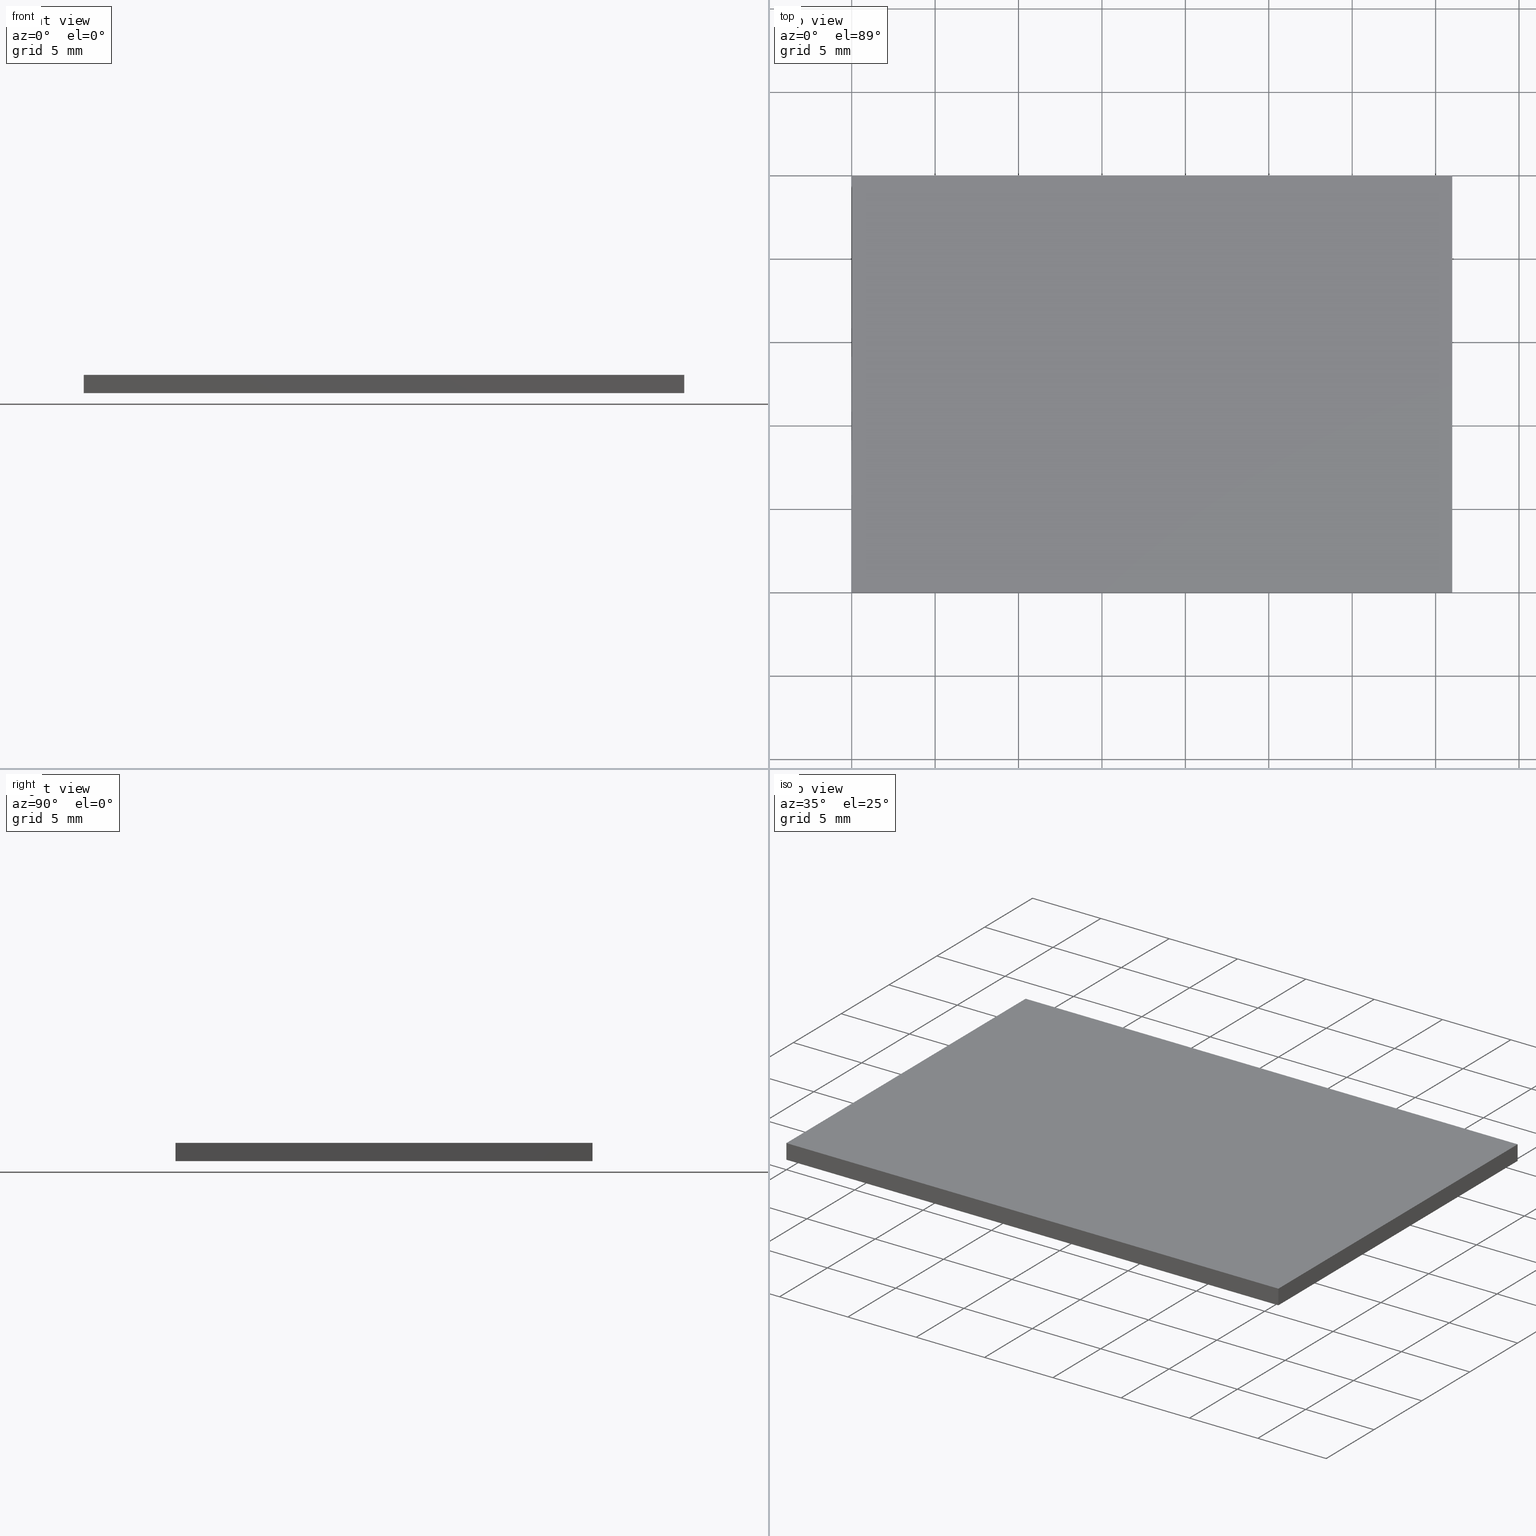
[diagram: canonical four-view strip — front | top / right | iso, engineering-drawing reading convention]
A machine part, canonical four-view strip (front | top / right | iso — engineering-drawing reading convention). The complete STEP part file that produces these views, byte-faithful:
ISO-10303-21;
HEADER;
FILE_DESCRIPTION (( 'STEP AP214' ),
    '1' );
FILE_NAME ('GDMLPH-510-25x36S.STEP',
    '2024-08-13T06:03:54',
    ( 'Windows User' ),
    ( 'P R C' ),
    'SwSTEP 2.0',
    'SolidWorks 2022',
    '' );
FILE_SCHEMA (( 'AUTOMOTIVE_DESIGN' ));
ENDSEC;

DATA;
#1 = CARTESIAN_POINT ( 'NONE',  ( 0.000000000000000000, 0.000000000000000000, 0.000000000000000000 ) ) ;
#2 = FACE_OUTER_BOUND ( 'NONE', #170, .T. ) ;
#3 = VECTOR ( 'NONE', #10, 1000.000000000000000 ) ;
#4 = ORIENTED_EDGE ( 'NONE', *, *, #95, .F. ) ;
#5 = DIRECTION ( 'NONE',  ( -0.000000000000000000, -0.000000000000000000, -1.000000000000000000 ) ) ;
#6 = CARTESIAN_POINT ( 'NONE',  ( 36.00000000000000000, 0.000000000000000000, 1.100000000000000089 ) ) ;
#7 = ORIENTED_EDGE ( 'NONE', *, *, #134, .F. ) ;
#8 = VECTOR ( 'NONE', #13, 1000.000000000000000 ) ;
#9 = UNCERTAINTY_MEASURE_WITH_UNIT (LENGTH_MEASURE( 1.000000000000000082E-05 ), #193, 'distance_accuracy_value', 'NONE');
#10 = DIRECTION ( 'NONE',  ( -0.000000000000000000, -0.000000000000000000, -1.000000000000000000 ) ) ;
#11 = FACE_OUTER_BOUND ( 'NONE', #160, .T. ) ;
#12 = PRESENTATION_STYLE_ASSIGNMENT (( #77 ) ) ;
#13 = DIRECTION ( 'NONE',  ( -0.000000000000000000, -0.000000000000000000, -1.000000000000000000 ) ) ;
#14 = EDGE_LOOP ( 'NONE', ( #147, #112, #82, #190 ) ) ;
#15 = CARTESIAN_POINT ( 'NONE',  ( 0.000000000000000000, 0.000000000000000000, 1.100000000000000089 ) ) ;
#16 = ORIENTED_EDGE ( 'NONE', *, *, #89, .F. ) ;
#17 = LINE ( 'NONE', #149, #173 ) ;
#18 = EDGE_CURVE ( 'NONE', #85, #150, #17, .T. ) ;
#19 = ORIENTED_EDGE ( 'NONE', *, *, #183, .T. ) ;
#20 = SHAPE_DEFINITION_REPRESENTATION ( #129, #142 ) ;
#21 = PRODUCT_CONTEXT ( 'NONE', #46, 'mechanical' ) ;
#22 = EDGE_CURVE ( 'NONE', #113, #47, #128, .T. ) ;
#23 = UNCERTAINTY_MEASURE_WITH_UNIT (LENGTH_MEASURE( 1.000000000000000082E-05 ), #78, 'distance_accuracy_value', 'NONE');
#24 = PLANE ( 'NONE',  #132 ) ;
#25 = SURFACE_SIDE_STYLE ('',( #164 ) ) ;
#26 = VECTOR ( 'NONE', #141, 1000.000000000000000 ) ;
#27 =( GEOMETRIC_REPRESENTATION_CONTEXT ( 3 ) GLOBAL_UNCERTAINTY_ASSIGNED_CONTEXT ( ( #9 ) ) GLOBAL_UNIT_ASSIGNED_CONTEXT ( ( #193, #101, #195 ) ) REPRESENTATION_CONTEXT ( 'NONE', 'WORKASPACE' ) );
#28 = DIRECTION ( 'NONE',  ( -0.000000000000000000, -0.000000000000000000, -1.000000000000000000 ) ) ;
#29 = LINE ( 'NONE', #94, #96 ) ;
#30 =( NAMED_UNIT ( * ) PLANE_ANGLE_UNIT ( ) SI_UNIT ( $, .RADIAN. ) );
#31 = EDGE_CURVE ( 'NONE', #48, #47, #97, .T. ) ;
#32 = CLOSED_SHELL ( 'NONE', ( #131, #79, #191, #167, #60, #188 ) ) ;
#33 = ORIENTED_EDGE ( 'NONE', *, *, #31, .F. ) ;
#34 = ORIENTED_EDGE ( 'NONE', *, *, #31, .T. ) ;
#35 = VERTEX_POINT ( 'NONE', #130 ) ;
#36 = SURFACE_SIDE_STYLE ('',( #175 ) ) ;
#37 = DIRECTION ( 'NONE',  ( 0.000000000000000000, -1.000000000000000000, 0.000000000000000000 ) ) ;
#38 = FACE_OUTER_BOUND ( 'NONE', #14, .T. ) ;
#39 = CARTESIAN_POINT ( 'NONE',  ( 0.000000000000000000, 0.000000000000000000, 1.100000000000000089 ) ) ;
#40 = FILL_AREA_STYLE_COLOUR ( '', #182 ) ;
#41 = PRODUCT_RELATED_PRODUCT_CATEGORY ( 'part', '', ( #99 ) ) ;
#42 = VECTOR ( 'NONE', #178, 1000.000000000000000 ) ;
#43 = DIRECTION ( 'NONE',  ( 0.000000000000000000, 0.000000000000000000, 1.000000000000000000 ) ) ;
#44 =( NAMED_UNIT ( * ) PLANE_ANGLE_UNIT ( ) SI_UNIT ( $, .RADIAN. ) );
#45 = CARTESIAN_POINT ( 'NONE',  ( 0.000000000000000000, 0.000000000000000000, 1.100000000000000089 ) ) ;
#46 = APPLICATION_CONTEXT ( 'automotive_design' ) ;
#47 = VERTEX_POINT ( 'NONE', #157 ) ;
#48 = VERTEX_POINT ( 'NONE', #100 ) ;
#49 = EDGE_LOOP ( 'NONE', ( #127, #98, #171, #174 ) ) ;
#50 = ORIENTED_EDGE ( 'NONE', *, *, #68, .F. ) ;
#51 = VECTOR ( 'NONE', #67, 1000.000000000000000 ) ;
#52 = SURFACE_STYLE_USAGE ( .BOTH. , #25 ) ;
#53 = PRODUCT_DEFINITION_CONTEXT ( 'detailed design', #54, 'design' ) ;
#54 = APPLICATION_CONTEXT ( 'automotive_design' ) ;
#55 = DIRECTION ( 'NONE',  ( 0.000000000000000000, -0.000000000000000000, -1.000000000000000000 ) ) ;
#56 = EDGE_CURVE ( 'NONE', #115, #48, #192, .T. ) ;
#57 = CARTESIAN_POINT ( 'NONE',  ( 36.00000000000000000, 25.00000000000000000, 0.000000000000000000 ) ) ;
#58 = LINE ( 'NONE', #121, #64 ) ;
#59 = AXIS2_PLACEMENT_3D ( 'NONE', #139, #109, #75 ) ;
#60 = ADVANCED_FACE ( 'NONE', ( #201 ), #108, .F. ) ;
#61 = DIRECTION ( 'NONE',  ( 0.000000000000000000, -0.000000000000000000, 1.000000000000000000 ) ) ;
#62 = CARTESIAN_POINT ( 'NONE',  ( 0.000000000000000000, 25.00000000000000000, 0.000000000000000000 ) ) ;
#63 = PLANE ( 'NONE',  #73 ) ;
#64 = VECTOR ( 'NONE', #106, 1000.000000000000000 ) ;
#65 = ORIENTED_EDGE ( 'NONE', *, *, #18, .T. ) ;
#66 = ORIENTED_EDGE ( 'NONE', *, *, #161, .F. ) ;
#67 = DIRECTION ( 'NONE',  ( 1.000000000000000000, 0.000000000000000000, 0.000000000000000000 ) ) ;
#68 = EDGE_CURVE ( 'NONE', #35, #48, #92, .T. ) ;
#69 = MECHANICAL_DESIGN_GEOMETRIC_PRESENTATION_REPRESENTATION (  '', ( #122 ), #138 ) ;
#70 = UNCERTAINTY_MEASURE_WITH_UNIT (LENGTH_MEASURE( 1.000000000000000082E-05 ), #166, 'distance_accuracy_value', 'NONE');
#71 = EDGE_CURVE ( 'NONE', #116, #115, #58, .T. ) ;
#72 = DIRECTION ( 'NONE',  ( -1.000000000000000000, 0.000000000000000000, 0.000000000000000000 ) ) ;
#73 = AXIS2_PLACEMENT_3D ( 'NONE', #202, #72, #43 ) ;
#74 = PRESENTATION_STYLE_ASSIGNMENT (( #52 ) ) ;
#75 = DIRECTION ( 'NONE',  ( -1.000000000000000000, 0.000000000000000000, -0.000000000000000000 ) ) ;
#76 = DIRECTION ( 'NONE',  ( 0.000000000000000000, 1.000000000000000000, 0.000000000000000000 ) ) ;
#77 = SURFACE_STYLE_USAGE ( .BOTH. , #36 ) ;
#78 =( LENGTH_UNIT ( ) NAMED_UNIT ( * ) SI_UNIT ( .MILLI., .METRE. ) );
#79 = ADVANCED_FACE ( 'NONE', ( #11 ), #24, .F. ) ;
#80 = AXIS2_PLACEMENT_3D ( 'NONE', #105, #196, #163 ) ;
#81 = EDGE_LOOP ( 'NONE', ( #103, #159, #7, #172 ) ) ;
#82 = ORIENTED_EDGE ( 'NONE', *, *, #71, .F. ) ;
#83 = EDGE_LOOP ( 'NONE', ( #19, #16, #148, #65 ) ) ;
#84 = COLOUR_RGB ( '',1.000000000000000000, 1.000000000000000000, 1.000000000000000000 ) ;
#85 = VERTEX_POINT ( 'NONE', #143 ) ;
#86 = ORIENTED_EDGE ( 'NONE', *, *, #56, .T. ) ;
#87 = PLANE ( 'NONE',  #80 ) ;
#88 = DIRECTION ( 'NONE',  ( 0.000000000000000000, 1.000000000000000000, 0.000000000000000000 ) ) ;
#89 = EDGE_CURVE ( 'NONE', #116, #35, #123, .T. ) ;
#90 = CARTESIAN_POINT ( 'NONE',  ( 0.000000000000000000, 25.00000000000000000, 1.100000000000000089 ) ) ;
#91 = VECTOR ( 'NONE', #199, 1000.000000000000000 ) ;
#92 = LINE ( 'NONE', #184, #26 ) ;
#93 = MECHANICAL_DESIGN_GEOMETRIC_PRESENTATION_REPRESENTATION (  '', ( #102 ), #27 ) ;
#94 = CARTESIAN_POINT ( 'NONE',  ( 0.000000000000000000, 0.000000000000000000, 1.100000000000000089 ) ) ;
#95 = EDGE_CURVE ( 'NONE', #115, #113, #29, .T. ) ;
#96 = VECTOR ( 'NONE', #154, 1000.000000000000000 ) ;
#97 = LINE ( 'NONE', #146, #51 ) ;
#98 = ORIENTED_EDGE ( 'NONE', *, *, #95, .T. ) ;
#99 = PRODUCT ( 'GDMLPH-510-25x36S', 'GDMLPH-510-25x36S', '', ( #21 ) ) ;
#100 = CARTESIAN_POINT ( 'NONE',  ( 0.000000000000000000, 0.000000000000000000, 0.000000000000000000 ) ) ;
#101 =( NAMED_UNIT ( * ) PLANE_ANGLE_UNIT ( ) SI_UNIT ( $, .RADIAN. ) );
#102 = STYLED_ITEM ( 'NONE', ( #12 ), #142 ) ;
#103 = ORIENTED_EDGE ( 'NONE', *, *, #161, .T. ) ;
#104 = APPLICATION_PROTOCOL_DEFINITION ( 'draft international standard', 'automotive_design', 1998, #46 ) ;
#105 = CARTESIAN_POINT ( 'NONE',  ( 0.000000000000000000, 0.000000000000000000, 1.100000000000000089 ) ) ;
#106 = DIRECTION ( 'NONE',  ( -0.000000000000000000, -1.000000000000000000, -0.000000000000000000 ) ) ;
#107 = CARTESIAN_POINT ( 'NONE',  ( 36.00000000000000000, 0.000000000000000000, 1.100000000000000089 ) ) ;
#108 = PLANE ( 'NONE',  #59 ) ;
#109 = DIRECTION ( 'NONE',  ( 0.000000000000000000, 0.000000000000000000, -1.000000000000000000 ) ) ;
#110 = LINE ( 'NONE', #119, #42 ) ;
#111 = PRODUCT_DEFINITION_FORMATION_WITH_SPECIFIED_SOURCE ( '�κ�', '', #99, .NOT_KNOWN. ) ;
#112 = ORIENTED_EDGE ( 'NONE', *, *, #56, .F. ) ;
#113 = VERTEX_POINT ( 'NONE', #186 ) ;
#114 = EDGE_CURVE ( 'NONE', #85, #116, #110, .T. ) ;
#115 = VERTEX_POINT ( 'NONE', #39 ) ;
#116 = VERTEX_POINT ( 'NONE', #90 ) ;
#117 = AXIS2_PLACEMENT_3D ( 'NONE', #1, #137, #185 ) ;
#118 = APPLICATION_PROTOCOL_DEFINITION ( 'draft international standard', 'automotive_design', 1998, #54 ) ;
#119 = CARTESIAN_POINT ( 'NONE',  ( 0.000000000000000000, 25.00000000000000000, 1.100000000000000089 ) ) ;
#120 = PLANE ( 'NONE',  #156 ) ;
#121 = CARTESIAN_POINT ( 'NONE',  ( 0.000000000000000000, 0.000000000000000000, 1.100000000000000089 ) ) ;
#122 = STYLED_ITEM ( 'NONE', ( #74 ), #169 ) ;
#123 = LINE ( 'NONE', #181, #165 ) ;
#124 = DIRECTION ( 'NONE',  ( -1.000000000000000000, -0.000000000000000000, -0.000000000000000000 ) ) ;
#125 = PLANE ( 'NONE',  #117 ) ;
#126 = VECTOR ( 'NONE', #124, 1000.000000000000000 ) ;
#127 = ORIENTED_EDGE ( 'NONE', *, *, #71, .T. ) ;
#128 = LINE ( 'NONE', #6, #8 ) ;
#129 = PRODUCT_DEFINITION_SHAPE ( 'NONE', 'NONE',  #153 ) ;
#130 = CARTESIAN_POINT ( 'NONE',  ( 0.000000000000000000, 25.00000000000000000, 0.000000000000000000 ) ) ;
#131 = ADVANCED_FACE ( 'NONE', ( #38 ), #87, .F. ) ;
#132 = AXIS2_PLACEMENT_3D ( 'NONE', #45, #76, #61 ) ;
#133 = FILL_AREA_STYLE ('',( #189 ) ) ;
#134 = EDGE_CURVE ( 'NONE', #113, #85, #136, .T. ) ;
#135 = LINE ( 'NONE', #151, #91 ) ;
#136 = LINE ( 'NONE', #107, #152 ) ;
#137 = DIRECTION ( 'NONE',  ( 0.000000000000000000, 0.000000000000000000, -1.000000000000000000 ) ) ;
#138 =( GEOMETRIC_REPRESENTATION_CONTEXT ( 3 ) GLOBAL_UNCERTAINTY_ASSIGNED_CONTEXT ( ( #23 ) ) GLOBAL_UNIT_ASSIGNED_CONTEXT ( ( #78, #30, #155 ) ) REPRESENTATION_CONTEXT ( 'NONE', 'WORKASPACE' ) );
#139 = CARTESIAN_POINT ( 'NONE',  ( 0.000000000000000000, 0.000000000000000000, 1.100000000000000089 ) ) ;
#140 = FACE_OUTER_BOUND ( 'NONE', #83, .T. ) ;
#141 = DIRECTION ( 'NONE',  ( -0.000000000000000000, -1.000000000000000000, -0.000000000000000000 ) ) ;
#142 = ADVANCED_BREP_SHAPE_REPRESENTATION ( 'GDMLPH-510-25x36S', ( #169, #145 ), #200 ) ;
#143 = CARTESIAN_POINT ( 'NONE',  ( 36.00000000000000000, 25.00000000000000000, 1.100000000000000089 ) ) ;
#144 = LINE ( 'NONE', #62, #126 ) ;
#145 = AXIS2_PLACEMENT_3D ( 'NONE', #162, #177, #198 ) ;
#146 = CARTESIAN_POINT ( 'NONE',  ( 0.000000000000000000, 0.000000000000000000, 0.000000000000000000 ) ) ;
#147 = ORIENTED_EDGE ( 'NONE', *, *, #68, .T. ) ;
#148 = ORIENTED_EDGE ( 'NONE', *, *, #114, .F. ) ;
#149 = CARTESIAN_POINT ( 'NONE',  ( 36.00000000000000000, 25.00000000000000000, 1.100000000000000089 ) ) ;
#150 = VERTEX_POINT ( 'NONE', #57 ) ;
#151 = CARTESIAN_POINT ( 'NONE',  ( 36.00000000000000000, 0.000000000000000000, 0.000000000000000000 ) ) ;
#152 = VECTOR ( 'NONE', #88, 1000.000000000000000 ) ;
#153 = PRODUCT_DEFINITION ( 'δ֪', '', #111, #53 ) ;
#154 = DIRECTION ( 'NONE',  ( 1.000000000000000000, 0.000000000000000000, 0.000000000000000000 ) ) ;
#155 =( NAMED_UNIT ( * ) SI_UNIT ( $, .STERADIAN. ) SOLID_ANGLE_UNIT ( ) );
#156 = AXIS2_PLACEMENT_3D ( 'NONE', #197, #37, #55 ) ;
#157 = CARTESIAN_POINT ( 'NONE',  ( 36.00000000000000000, 0.000000000000000000, 0.000000000000000000 ) ) ;
#158 = ORIENTED_EDGE ( 'NONE', *, *, #22, .F. ) ;
#159 = ORIENTED_EDGE ( 'NONE', *, *, #18, .F. ) ;
#160 = EDGE_LOOP ( 'NONE', ( #34, #158, #4, #86 ) ) ;
#161 = EDGE_CURVE ( 'NONE', #47, #150, #135, .T. ) ;
#162 = CARTESIAN_POINT ( 'NONE',  ( 0.000000000000000000, 0.000000000000000000, 0.000000000000000000 ) ) ;
#163 = DIRECTION ( 'NONE',  ( 0.000000000000000000, 0.000000000000000000, -1.000000000000000000 ) ) ;
#164 = SURFACE_STYLE_FILL_AREA ( #180 ) ;
#165 = VECTOR ( 'NONE', #28, 1000.000000000000000 ) ;
#166 =( LENGTH_UNIT ( ) NAMED_UNIT ( * ) SI_UNIT ( .MILLI., .METRE. ) );
#167 = ADVANCED_FACE ( 'NONE', ( #140 ), #120, .F. ) ;
#168 = PRESENTATION_LAYER_ASSIGNMENT (  '', '', ( #102 ) ) ;
#169 = MANIFOLD_SOLID_BREP ( '͹̨-����1', #32 ) ;
#170 = EDGE_LOOP ( 'NONE', ( #50, #176, #66, #33 ) ) ;
#171 = ORIENTED_EDGE ( 'NONE', *, *, #134, .T. ) ;
#172 = ORIENTED_EDGE ( 'NONE', *, *, #22, .T. ) ;
#173 = VECTOR ( 'NONE', #5, 1000.000000000000000 ) ;
#174 = ORIENTED_EDGE ( 'NONE', *, *, #114, .T. ) ;
#175 = SURFACE_STYLE_FILL_AREA ( #133 ) ;
#176 = ORIENTED_EDGE ( 'NONE', *, *, #183, .F. ) ;
#177 = DIRECTION ( 'NONE',  ( 0.000000000000000000, 0.000000000000000000, 1.000000000000000000 ) ) ;
#178 = DIRECTION ( 'NONE',  ( -1.000000000000000000, -0.000000000000000000, -0.000000000000000000 ) ) ;
#179 = FACE_OUTER_BOUND ( 'NONE', #81, .T. ) ;
#180 = FILL_AREA_STYLE ('',( #40 ) ) ;
#181 = CARTESIAN_POINT ( 'NONE',  ( 0.000000000000000000, 25.00000000000000000, 1.100000000000000089 ) ) ;
#182 = COLOUR_RGB ( '',1.000000000000000000, 1.000000000000000000, 1.000000000000000000 ) ;
#183 = EDGE_CURVE ( 'NONE', #150, #35, #144, .T. ) ;
#184 = CARTESIAN_POINT ( 'NONE',  ( 0.000000000000000000, 0.000000000000000000, 0.000000000000000000 ) ) ;
#185 = DIRECTION ( 'NONE',  ( -1.000000000000000000, 0.000000000000000000, -0.000000000000000000 ) ) ;
#186 = CARTESIAN_POINT ( 'NONE',  ( 36.00000000000000000, 0.000000000000000000, 1.100000000000000089 ) ) ;
#187 =( NAMED_UNIT ( * ) SI_UNIT ( $, .STERADIAN. ) SOLID_ANGLE_UNIT ( ) );
#188 = ADVANCED_FACE ( 'NONE', ( #2 ), #125, .T. ) ;
#189 = FILL_AREA_STYLE_COLOUR ( '', #84 ) ;
#190 = ORIENTED_EDGE ( 'NONE', *, *, #89, .T. ) ;
#191 = ADVANCED_FACE ( 'NONE', ( #179 ), #63, .F. ) ;
#192 = LINE ( 'NONE', #15, #3 ) ;
#193 =( LENGTH_UNIT ( ) NAMED_UNIT ( * ) SI_UNIT ( .MILLI., .METRE. ) );
#194 = PRESENTATION_LAYER_ASSIGNMENT (  '', '', ( #122 ) ) ;
#195 =( NAMED_UNIT ( * ) SI_UNIT ( $, .STERADIAN. ) SOLID_ANGLE_UNIT ( ) );
#196 = DIRECTION ( 'NONE',  ( 1.000000000000000000, 0.000000000000000000, 0.000000000000000000 ) ) ;
#197 = CARTESIAN_POINT ( 'NONE',  ( 0.000000000000000000, 25.00000000000000000, 1.100000000000000089 ) ) ;
#198 = DIRECTION ( 'NONE',  ( 1.000000000000000000, 0.000000000000000000, 0.000000000000000000 ) ) ;
#199 = DIRECTION ( 'NONE',  ( 0.000000000000000000, 1.000000000000000000, 0.000000000000000000 ) ) ;
#200 =( GEOMETRIC_REPRESENTATION_CONTEXT ( 3 ) GLOBAL_UNCERTAINTY_ASSIGNED_CONTEXT ( ( #70 ) ) GLOBAL_UNIT_ASSIGNED_CONTEXT ( ( #166, #44, #187 ) ) REPRESENTATION_CONTEXT ( 'NONE', 'WORKASPACE' ) );
#201 = FACE_OUTER_BOUND ( 'NONE', #49, .T. ) ;
#202 = CARTESIAN_POINT ( 'NONE',  ( 36.00000000000000000, 0.000000000000000000, 1.100000000000000089 ) ) ;
ENDSEC;
END-ISO-10303-21;
